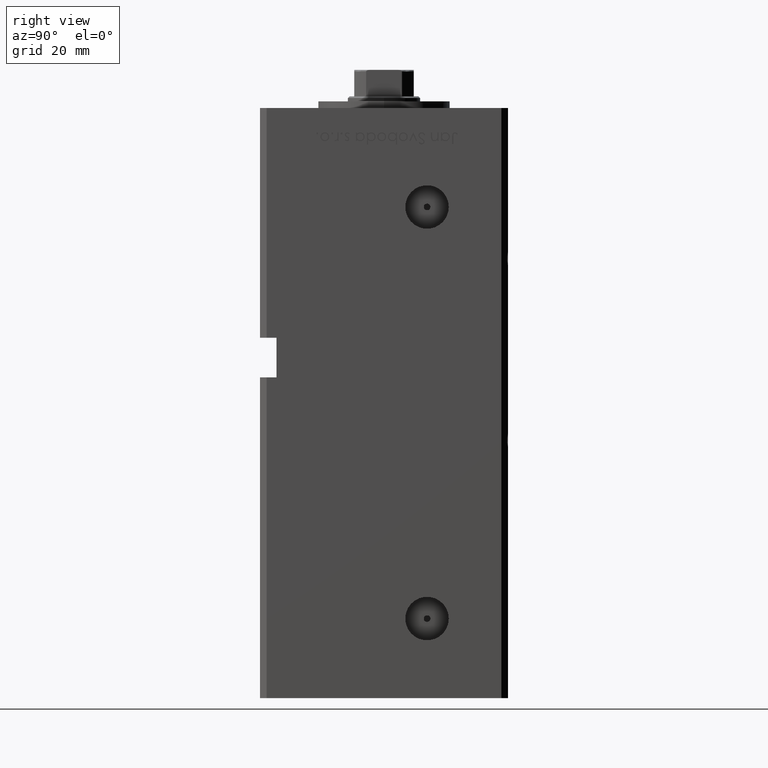
[diagram: clean part render]
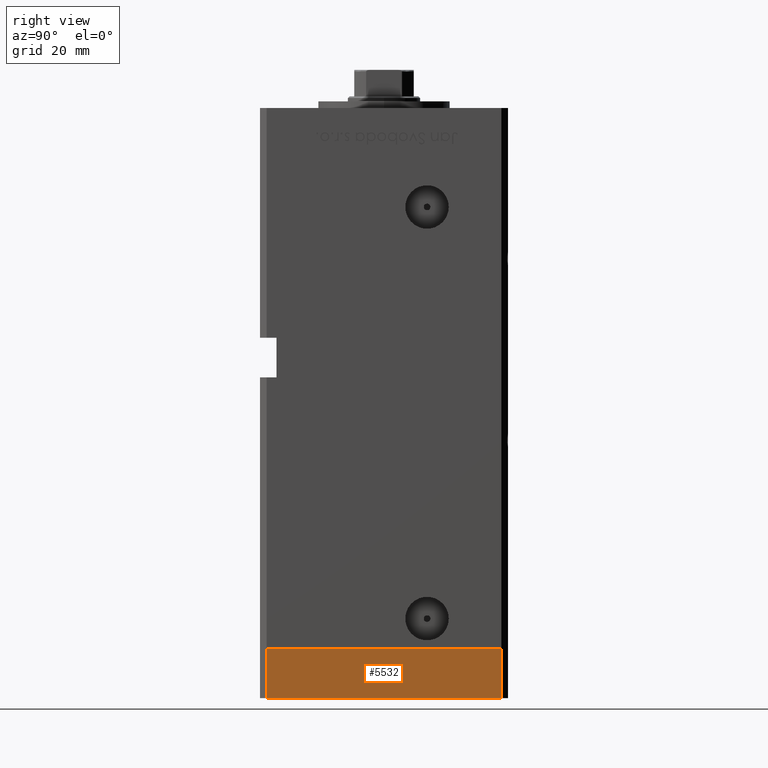
[diagram: same view with one face highlighted and labeled with its STEP entity id]
A machine part, right view. The second image highlights one B-rep face of the part: STEP entity #5532.
In plain terms, the highlighted planar face has unit normal (1, 0, 0).
Its self-contained STEP definition (entity closure, byte-faithful):
#675 = AXIS2_PLACEMENT_3D ( 'NONE', #46000, #29913, #37702 ) ;
#1742 = CARTESIAN_POINT ( 'NONE',  ( -42.50000000000000711, 35.49999999999997158, 0.000000000000000000 ) ) ;
#3650 = CARTESIAN_POINT ( 'NONE',  ( -42.50000000000000711, 35.49999999999997158, -15.00000000000000000 ) ) ;
#5532 = ADVANCED_FACE ( 'NONE', ( #21337 ), #20801, .T. ) ;
#6847 = DIRECTION ( 'NONE',  ( 9.773090005503140331E-17, -1.000000000000000000, 0.000000000000000000 ) ) ;
#9535 = EDGE_CURVE ( 'NONE', #27710, #46094, #40114, .T. ) ;
#13753 = CARTESIAN_POINT ( 'NONE',  ( -42.50000000000000000, -35.50000000000000711, -15.00000000000000000 ) ) ;
#14368 = LINE ( 'NONE', #1742, #51291 ) ;
#17583 = ORIENTED_EDGE ( 'NONE', *, *, #9535, .F. ) ;
#18672 = LINE ( 'NONE', #27276, #22023 ) ;
#20236 = CARTESIAN_POINT ( 'NONE',  ( -42.50000000000000711, 35.49999999999997158, -15.00000000000000000 ) ) ;
#20801 = PLANE ( 'NONE',  #675 ) ;
#21337 = FACE_OUTER_BOUND ( 'NONE', #49077, .T. ) ;
#22023 = VECTOR ( 'NONE', #6847, 1000.000000000000000 ) ;
#22068 = CARTESIAN_POINT ( 'NONE',  ( -42.50000000000000711, 35.49999999999997158, 0.000000000000000000 ) ) ;
#22449 = ORIENTED_EDGE ( 'NONE', *, *, #50820, .F. ) ;
#23921 = ORIENTED_EDGE ( 'NONE', *, *, #47477, .T. ) ;
#27276 = CARTESIAN_POINT ( 'NONE',  ( -42.50000000000000711, 35.49999999999997158, -15.00000000000000000 ) ) ;
#27539 = VERTEX_POINT ( 'NONE', #30817 ) ;
#27710 = VERTEX_POINT ( 'NONE', #3650 ) ;
#29166 = VERTEX_POINT ( 'NONE', #38409 ) ;
#29913 = DIRECTION ( 'NONE',  ( -1.000000000000000000, -9.773090005503140331E-17, 0.000000000000000000 ) ) ;
#30141 = DIRECTION ( 'NONE',  ( 0.000000000000000000, 0.000000000000000000, 1.000000000000000000 ) ) ;
#30817 = CARTESIAN_POINT ( 'NONE',  ( -42.50000000000000000, -35.50000000000000711, -15.00000000000000000 ) ) ;
#34168 = LINE ( 'NONE', #13753, #46755 ) ;
#34520 = DIRECTION ( 'NONE',  ( 9.773090005503140331E-17, -1.000000000000000000, 0.000000000000000000 ) ) ;
#37702 = DIRECTION ( 'NONE',  ( 9.773090005503140331E-17, -1.000000000000000000, 0.000000000000000000 ) ) ;
#38409 = CARTESIAN_POINT ( 'NONE',  ( -42.50000000000000000, -35.50000000000000711, 0.000000000000000000 ) ) ;
#40107 = ORIENTED_EDGE ( 'NONE', *, *, #42936, .T. ) ;
#40114 = LINE ( 'NONE', #20236, #48983 ) ;
#42936 = EDGE_CURVE ( 'NONE', #27539, #29166, #34168, .T. ) ;
#44396 = DIRECTION ( 'NONE',  ( 0.000000000000000000, 0.000000000000000000, 1.000000000000000000 ) ) ;
#46000 = CARTESIAN_POINT ( 'NONE',  ( -42.50000000000000711, 35.49999999999997158, -15.00000000000000000 ) ) ;
#46094 = VERTEX_POINT ( 'NONE', #22068 ) ;
#46755 = VECTOR ( 'NONE', #30141, 1000.000000000000000 ) ;
#47477 = EDGE_CURVE ( 'NONE', #27710, #27539, #18672, .T. ) ;
#48983 = VECTOR ( 'NONE', #44396, 1000.000000000000000 ) ;
#49077 = EDGE_LOOP ( 'NONE', ( #22449, #17583, #23921, #40107 ) ) ;
#50820 = EDGE_CURVE ( 'NONE', #46094, #29166, #14368, .T. ) ;
#51291 = VECTOR ( 'NONE', #34520, 1000.000000000000000 ) ;